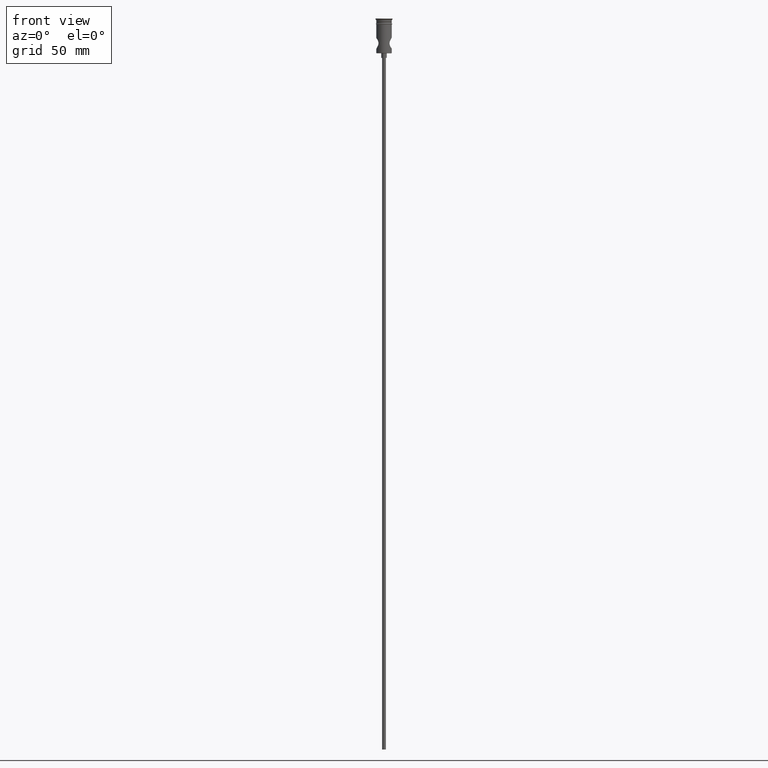
[diagram: clean part render]
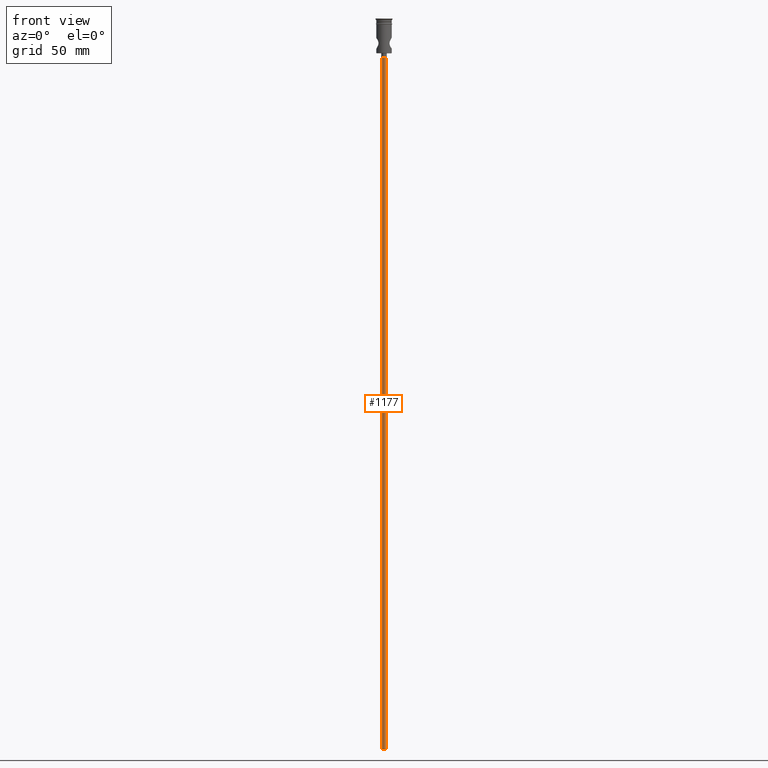
[diagram: same view with one face highlighted and labeled with its STEP entity id]
A machine part, front view. The second image highlights one B-rep face of the part: STEP entity #1177.
In plain terms, the highlighted cylindrical surface (edge-blend (fillet) strip) has radius 1.25 mm, axis along (-0, -0, 1).
Its self-contained STEP definition (entity closure, byte-faithful):
#2 = ORIENTED_EDGE ( 'NONE', *, *, #1117, .T. ) ;
#13 = FACE_OUTER_BOUND ( 'NONE', #1405, .T. ) ;
#36 = DIRECTION ( 'NONE',  ( 1.000000000000000000, 0.000000000000000000, 0.000000000000000000 ) ) ;
#46 = DIRECTION ( 'NONE',  ( 0.000000000000000000, 0.000000000000000000, -1.000000000000000000 ) ) ;
#49 = CARTESIAN_POINT ( 'NONE',  ( -1.250000000000000000, 1.530808498934191571E-16, -25.50000000000000000 ) ) ;
#59 = CARTESIAN_POINT ( 'NONE',  ( 1.250000000000000000, 0.000000000000000000, -472.5000000000000568 ) ) ;
#65 = AXIS2_PLACEMENT_3D ( 'NONE', #121, #1255, #36 ) ;
#91 = CIRCLE ( 'NONE', #457, 1.250000000000000000 ) ;
#121 = CARTESIAN_POINT ( 'NONE',  ( 0.000000000000000000, 0.000000000000000000, -472.5000000000000568 ) ) ;
#139 = VECTOR ( 'NONE', #1387, 1000.000000000000000 ) ;
#168 = LINE ( 'NONE', #59, #139 ) ;
#214 = ORIENTED_EDGE ( 'NONE', *, *, #1116, .T. ) ;
#289 = VERTEX_POINT ( 'NONE', #455 ) ;
#455 = CARTESIAN_POINT ( 'NONE',  ( 1.250000000000000000, 0.000000000000000000, -472.5000000000000568 ) ) ;
#457 = AXIS2_PLACEMENT_3D ( 'NONE', #613, #717, #1155 ) ;
#546 = AXIS2_PLACEMENT_3D ( 'NONE', #940, #46, #818 ) ;
#613 = CARTESIAN_POINT ( 'NONE',  ( 0.000000000000000000, 0.000000000000000000, -25.50000000000000000 ) ) ;
#717 = DIRECTION ( 'NONE',  ( 0.000000000000000000, 0.000000000000000000, -1.000000000000000000 ) ) ;
#734 = VERTEX_POINT ( 'NONE', #1294 ) ;
#764 = LINE ( 'NONE', #855, #848 ) ;
#818 = DIRECTION ( 'NONE',  ( -1.000000000000000000, 0.000000000000000000, 0.000000000000000000 ) ) ;
#848 = VECTOR ( 'NONE', #967, 1000.000000000000000 ) ;
#855 = CARTESIAN_POINT ( 'NONE',  ( -1.250000000000000000, 1.530808498934191571E-16, -472.5000000000000568 ) ) ;
#916 = VERTEX_POINT ( 'NONE', #1357 ) ;
#940 = CARTESIAN_POINT ( 'NONE',  ( 0.000000000000000000, 0.000000000000000000, -472.5000000000000568 ) ) ;
#967 = DIRECTION ( 'NONE',  ( -0.000000000000000000, -0.000000000000000000, 1.000000000000000000 ) ) ;
#1050 = EDGE_CURVE ( 'NONE', #289, #916, #1084, .T. ) ;
#1084 = CIRCLE ( 'NONE', #546, 1.250000000000000000 ) ;
#1095 = CYLINDRICAL_SURFACE ( 'NONE', #65, 1.250000000000000000 ) ;
#1098 = ORIENTED_EDGE ( 'NONE', *, *, #1329, .F. ) ;
#1116 = EDGE_CURVE ( 'NONE', #734, #1231, #91, .T. ) ;
#1117 = EDGE_CURVE ( 'NONE', #289, #734, #168, .T. ) ;
#1155 = DIRECTION ( 'NONE',  ( -1.000000000000000000, 0.000000000000000000, 0.000000000000000000 ) ) ;
#1177 = ADVANCED_FACE ( 'NONE', ( #13 ), #1095, .T. ) ;
#1231 = VERTEX_POINT ( 'NONE', #49 ) ;
#1255 = DIRECTION ( 'NONE',  ( -0.000000000000000000, -0.000000000000000000, 1.000000000000000000 ) ) ;
#1294 = CARTESIAN_POINT ( 'NONE',  ( 1.250000000000000000, 0.000000000000000000, -25.50000000000000000 ) ) ;
#1329 = EDGE_CURVE ( 'NONE', #916, #1231, #764, .T. ) ;
#1357 = CARTESIAN_POINT ( 'NONE',  ( -1.250000000000000000, 1.530808498934191571E-16, -472.5000000000000568 ) ) ;
#1387 = DIRECTION ( 'NONE',  ( -0.000000000000000000, -0.000000000000000000, 1.000000000000000000 ) ) ;
#1405 = EDGE_LOOP ( 'NONE', ( #1098, #1416, #2, #214 ) ) ;
#1416 = ORIENTED_EDGE ( 'NONE', *, *, #1050, .F. ) ;